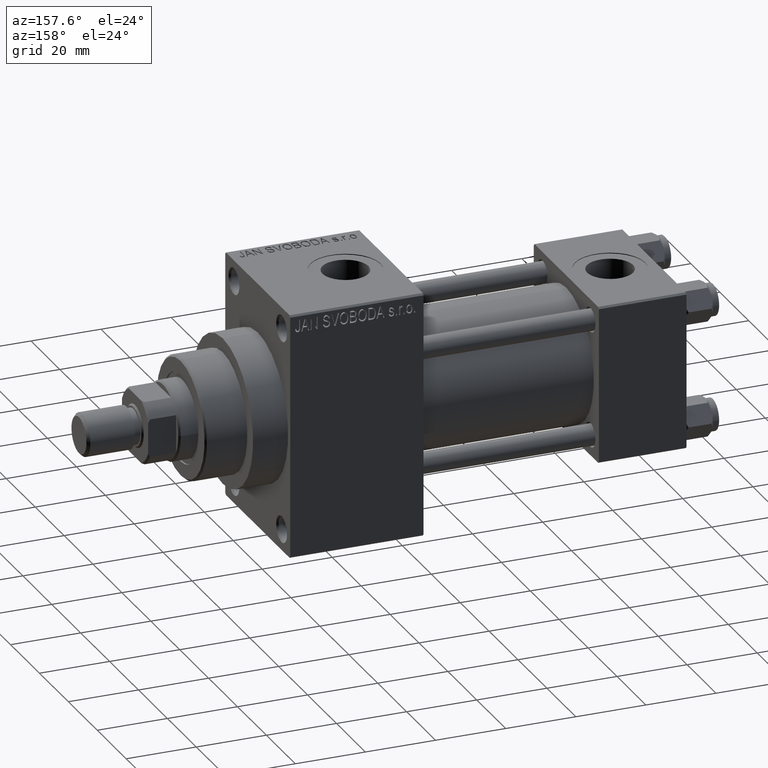
[diagram: clean part render]
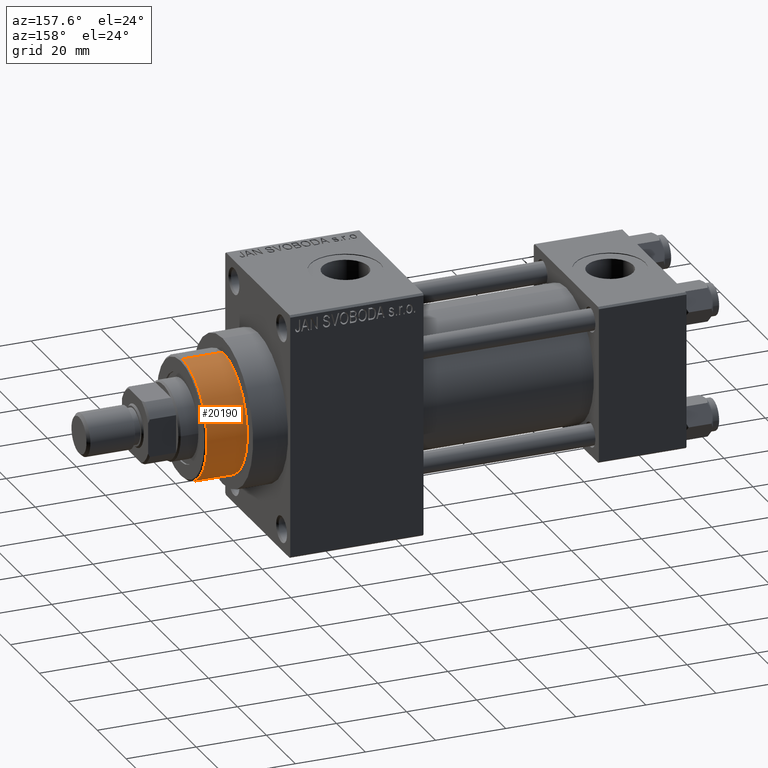
[diagram: same view with one face highlighted and labeled with its STEP entity id]
A machine part, auxiliary view. The second image highlights one B-rep face of the part: STEP entity #20190.
In plain terms, the highlighted cylindrical surface (partial cylindrical patch) has radius 17 mm, axis along (-1, 0, 0).
Its self-contained STEP definition (entity closure, byte-faithful):
#185 = VERTEX_POINT ( 'NONE', #7801 ) ;
#1247 = LINE ( 'NONE', #26532, #43078 ) ;
#2112 = DIRECTION ( 'NONE',  ( 0.000000000000000000, 0.000000000000000000, 1.000000000000000000 ) ) ;
#2282 = LINE ( 'NONE', #21055, #39879 ) ;
#3835 = FACE_OUTER_BOUND ( 'NONE', #4590, .T. ) ;
#3941 = ORIENTED_EDGE ( 'NONE', *, *, #33891, .T. ) ;
#4590 = EDGE_LOOP ( 'NONE', ( #25746, #3941, #33239, #37081 ) ) ;
#5159 = VERTEX_POINT ( 'NONE', #39756 ) ;
#6282 = CARTESIAN_POINT ( 'NONE',  ( -17.00000000000000000, 0.000000000000000000, 43.25999999999999801 ) ) ;
#7801 = CARTESIAN_POINT ( 'NONE',  ( 17.00000000000000000, 2.081899558550500280E-15, 43.25999999999999801 ) ) ;
#8709 = DIRECTION ( 'NONE',  ( -0.000000000000000000, -0.000000000000000000, -1.000000000000000000 ) ) ;
#9782 = DIRECTION ( 'NONE',  ( 0.000000000000000000, 0.000000000000000000, -1.000000000000000000 ) ) ;
#10587 = DIRECTION ( 'NONE',  ( -1.000000000000000000, 0.000000000000000000, 0.000000000000000000 ) ) ;
#10719 = VERTEX_POINT ( 'NONE', #25680 ) ;
#11067 = DIRECTION ( 'NONE',  ( -0.000000000000000000, -0.000000000000000000, -1.000000000000000000 ) ) ;
#11831 = AXIS2_PLACEMENT_3D ( 'NONE', #20182, #2112, #34849 ) ;
#15237 = CIRCLE ( 'NONE', #28274, 17.00000000000000000 ) ;
#20182 = CARTESIAN_POINT ( 'NONE',  ( 0.000000000000000000, 0.000000000000000000, 43.25999999999999801 ) ) ;
#20190 = ADVANCED_FACE ( 'NONE', ( #3835 ), #43544, .T. ) ;
#21055 = CARTESIAN_POINT ( 'NONE',  ( -17.00000000000000000, 0.000000000000000000, 55.26000000000000512 ) ) ;
#21116 = EDGE_CURVE ( 'NONE', #33541, #185, #28763, .T. ) ;
#21181 = CARTESIAN_POINT ( 'NONE',  ( 0.000000000000000000, 0.000000000000000000, 55.26000000000000512 ) ) ;
#24463 = CARTESIAN_POINT ( 'NONE',  ( 0.000000000000000000, 0.000000000000000000, 54.76000000000001222 ) ) ;
#25680 = CARTESIAN_POINT ( 'NONE',  ( -17.00000000000000000, 0.000000000000000000, 54.76000000000001222 ) ) ;
#25746 = ORIENTED_EDGE ( 'NONE', *, *, #43384, .F. ) ;
#26532 = CARTESIAN_POINT ( 'NONE',  ( 17.00000000000000000, 2.081899558550500280E-15, 55.26000000000000512 ) ) ;
#28274 = AXIS2_PLACEMENT_3D ( 'NONE', #24463, #9782, #28299 ) ;
#28299 = DIRECTION ( 'NONE',  ( 1.000000000000000000, 0.000000000000000000, 0.000000000000000000 ) ) ;
#28763 = CIRCLE ( 'NONE', #11831, 17.00000000000000000 ) ;
#33239 = ORIENTED_EDGE ( 'NONE', *, *, #35941, .T. ) ;
#33541 = VERTEX_POINT ( 'NONE', #6282 ) ;
#33891 = EDGE_CURVE ( 'NONE', #5159, #10719, #15237, .T. ) ;
#34849 = DIRECTION ( 'NONE',  ( 1.000000000000000000, 0.000000000000000000, 0.000000000000000000 ) ) ;
#35941 = EDGE_CURVE ( 'NONE', #10719, #33541, #2282, .T. ) ;
#37081 = ORIENTED_EDGE ( 'NONE', *, *, #21116, .T. ) ;
#39756 = CARTESIAN_POINT ( 'NONE',  ( 17.00000000000000000, 2.081899558550500280E-15, 54.76000000000001222 ) ) ;
#39879 = VECTOR ( 'NONE', #42718, 1000.000000000000000 ) ;
#42718 = DIRECTION ( 'NONE',  ( -0.000000000000000000, -0.000000000000000000, -1.000000000000000000 ) ) ;
#43078 = VECTOR ( 'NONE', #8709, 1000.000000000000000 ) ;
#43384 = EDGE_CURVE ( 'NONE', #5159, #185, #1247, .T. ) ;
#43544 = CYLINDRICAL_SURFACE ( 'NONE', #46420, 17.00000000000000000 ) ;
#46420 = AXIS2_PLACEMENT_3D ( 'NONE', #21181, #11067, #10587 ) ;